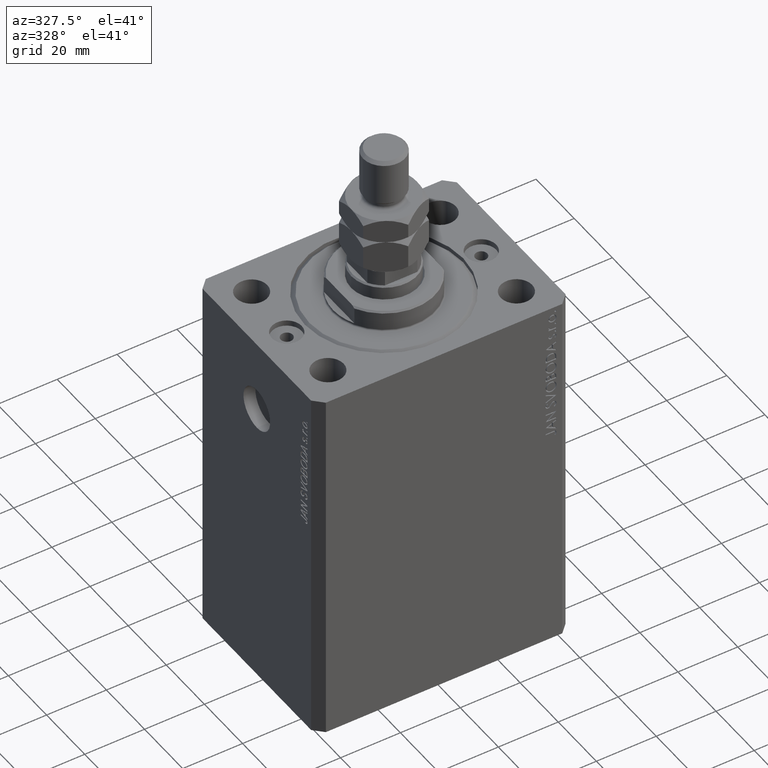
[diagram: clean part render]
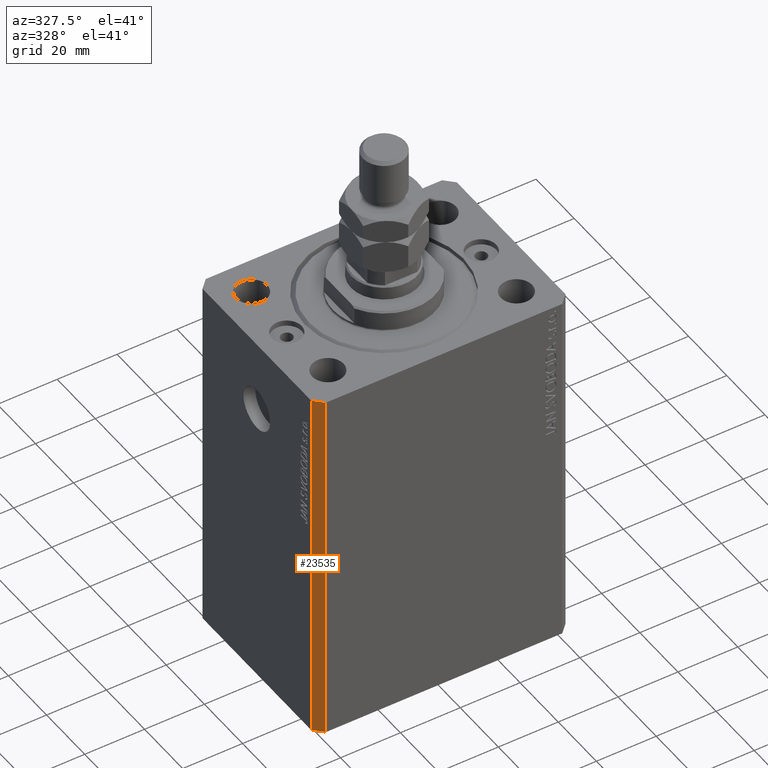
[diagram: same view with one face highlighted and labeled with its STEP entity id]
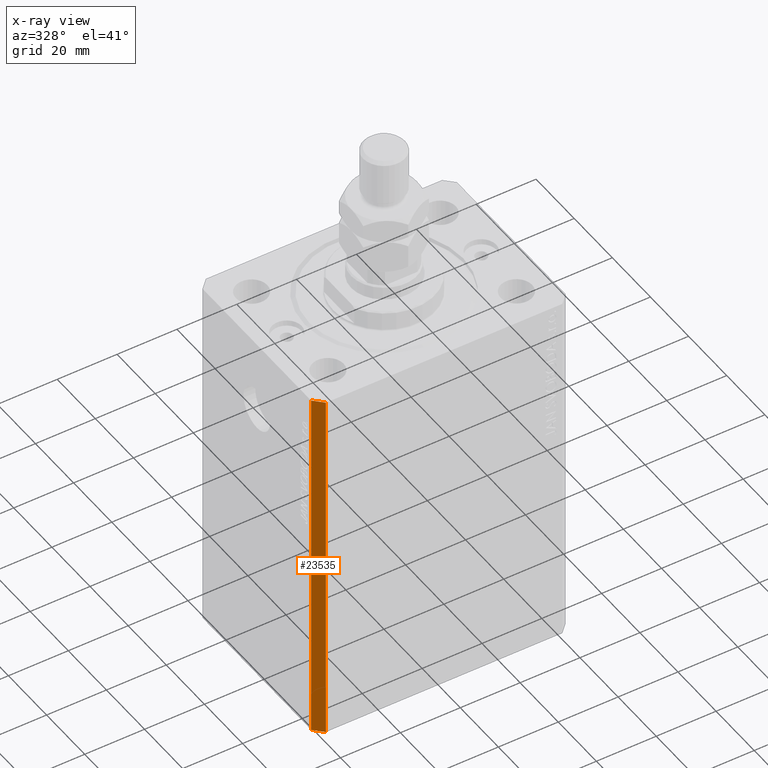
[diagram: x-ray of the same camera — body ghosted, the highlighted face saturated]
A machine part, auxiliary view. The second image highlights one B-rep face of the part: STEP entity #23535.
The next image is the same camera in x-ray: the body ghosted, the highlighted face saturated — about 0% of this face is hidden behind the body in this view.
In plain terms, the highlighted planar face has unit normal (-0.7071, -0.7071, 0).
Its self-contained STEP definition (entity closure, byte-faithful):
#463 = DIRECTION ( 'NONE',  ( -0.7071067811865479058, -0.7071067811865472397, 0.000000000000000000 ) ) ;
#902 = VECTOR ( 'NONE', #27164, 1000.000000000000000 ) ;
#1583 = DIRECTION ( 'NONE',  ( 0.7071067811865471286, -0.7071067811865479058, 0.000000000000000000 ) ) ;
#2202 = CARTESIAN_POINT ( 'NONE',  ( -42.50000000000000000, -28.50000000000000000, -123.0000000000000000 ) ) ;
#2508 = ORIENTED_EDGE ( 'NONE', *, *, #26887, .F. ) ;
#3204 = VECTOR ( 'NONE', #40317, 1000.000000000000000 ) ;
#5991 = LINE ( 'NONE', #37566, #6918 ) ;
#6272 = CARTESIAN_POINT ( 'NONE',  ( -39.50000000000000711, -31.50000000000000000, -123.0000000000000000 ) ) ;
#6918 = VECTOR ( 'NONE', #1583, 1000.000000000000000 ) ;
#10684 = FACE_OUTER_BOUND ( 'NONE', #45305, .T. ) ;
#11754 = LINE ( 'NONE', #33354, #3204 ) ;
#13079 = CARTESIAN_POINT ( 'NONE',  ( -39.50000000000000711, -31.50000000000000000, 0.000000000000000000 ) ) ;
#13916 = LINE ( 'NONE', #6272, #902 ) ;
#14615 = DIRECTION ( 'NONE',  ( 0.7071067811865472397, -0.7071067811865479058, 0.000000000000000000 ) ) ;
#14835 = VERTEX_POINT ( 'NONE', #2202 ) ;
#17115 = VERTEX_POINT ( 'NONE', #19386 ) ;
#18113 = CARTESIAN_POINT ( 'NONE',  ( -42.50000000000000000, -28.50000000000000000, -123.0000000000000000 ) ) ;
#18685 = EDGE_CURVE ( 'NONE', #30478, #24323, #13916, .T. ) ;
#19386 = CARTESIAN_POINT ( 'NONE',  ( -42.50000000000000000, -28.50000000000000000, 0.000000000000000000 ) ) ;
#20932 = CARTESIAN_POINT ( 'NONE',  ( -42.50000000000000000, -28.50000000000000000, -123.0000000000000000 ) ) ;
#21389 = LINE ( 'NONE', #20932, #30403 ) ;
#23535 = ADVANCED_FACE ( 'NONE', ( #10684 ), #35756, .T. ) ;
#24323 = VERTEX_POINT ( 'NONE', #13079 ) ;
#25837 = ORIENTED_EDGE ( 'NONE', *, *, #44618, .F. ) ;
#26887 = EDGE_CURVE ( 'NONE', #14835, #17115, #21389, .T. ) ;
#26983 = AXIS2_PLACEMENT_3D ( 'NONE', #18113, #463, #14615 ) ;
#27164 = DIRECTION ( 'NONE',  ( 0.000000000000000000, 0.000000000000000000, 1.000000000000000000 ) ) ;
#30403 = VECTOR ( 'NONE', #34874, 1000.000000000000000 ) ;
#30478 = VERTEX_POINT ( 'NONE', #41415 ) ;
#33354 = CARTESIAN_POINT ( 'NONE',  ( -42.50000000000000000, -28.50000000000000000, 0.000000000000000000 ) ) ;
#34874 = DIRECTION ( 'NONE',  ( 0.000000000000000000, 0.000000000000000000, 1.000000000000000000 ) ) ;
#35434 = ORIENTED_EDGE ( 'NONE', *, *, #43644, .T. ) ;
#35756 = PLANE ( 'NONE',  #26983 ) ;
#37566 = CARTESIAN_POINT ( 'NONE',  ( -42.50000000000000000, -28.50000000000000000, -123.0000000000000000 ) ) ;
#40317 = DIRECTION ( 'NONE',  ( 0.7071067811865471286, -0.7071067811865479058, 0.000000000000000000 ) ) ;
#40665 = ORIENTED_EDGE ( 'NONE', *, *, #18685, .T. ) ;
#41415 = CARTESIAN_POINT ( 'NONE',  ( -39.50000000000000711, -31.50000000000000000, -123.0000000000000000 ) ) ;
#43644 = EDGE_CURVE ( 'NONE', #14835, #30478, #5991, .T. ) ;
#44618 = EDGE_CURVE ( 'NONE', #17115, #24323, #11754, .T. ) ;
#45305 = EDGE_LOOP ( 'NONE', ( #25837, #2508, #35434, #40665 ) ) ;